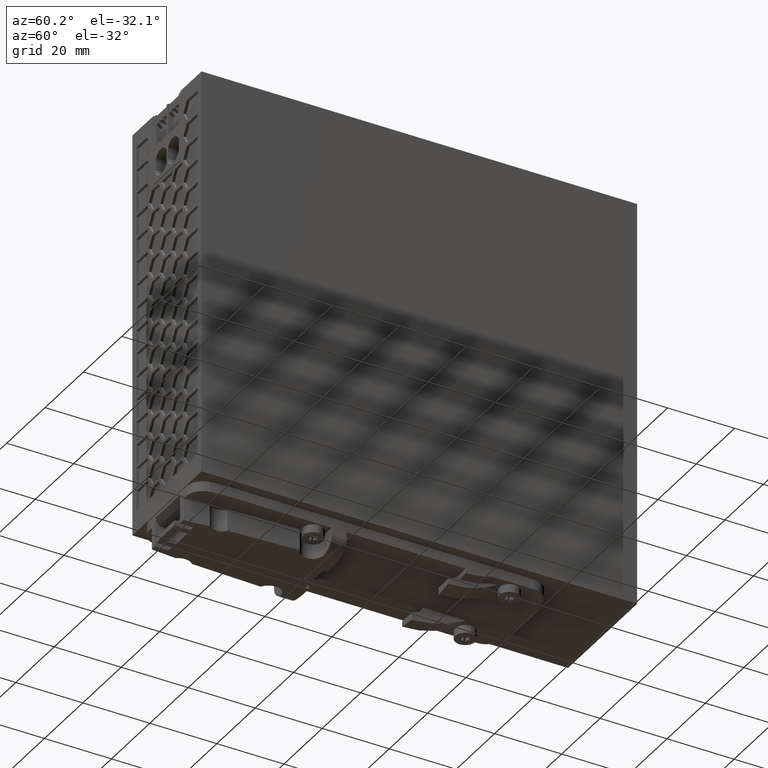
[diagram: clean part render]
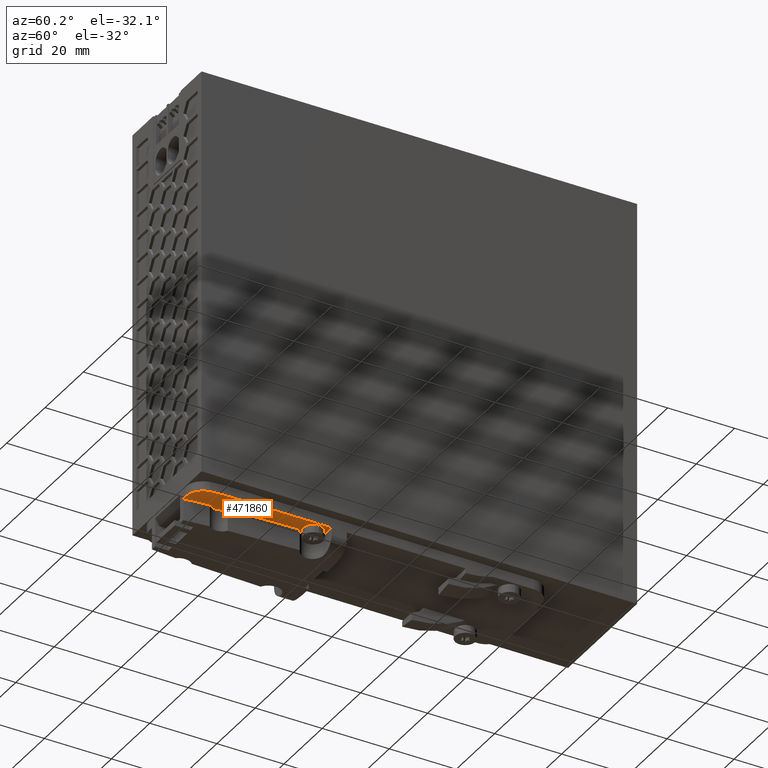
[diagram: same view with one face highlighted and labeled with its STEP entity id]
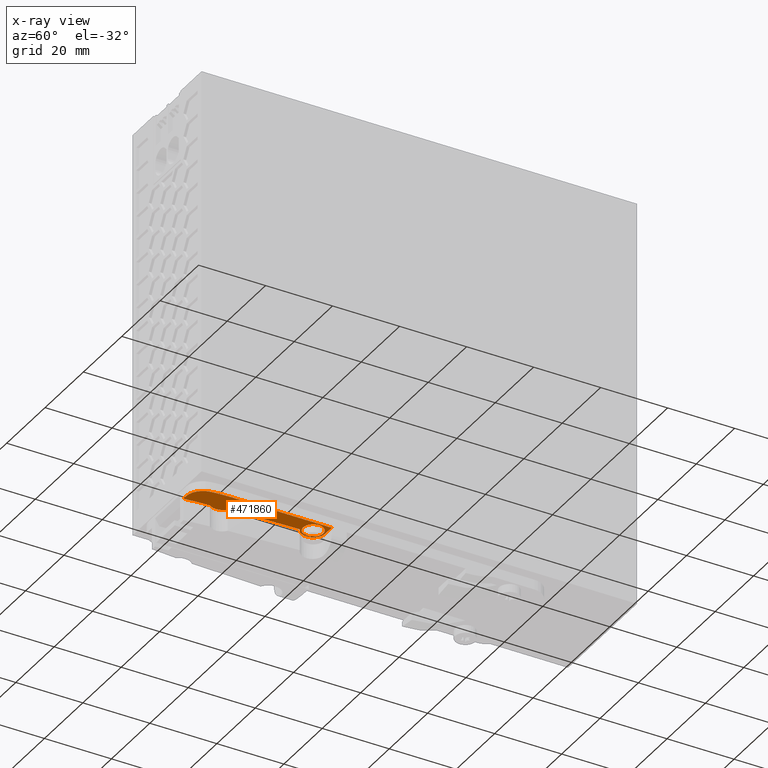
[diagram: x-ray of the same camera — body ghosted, the highlighted face saturated]
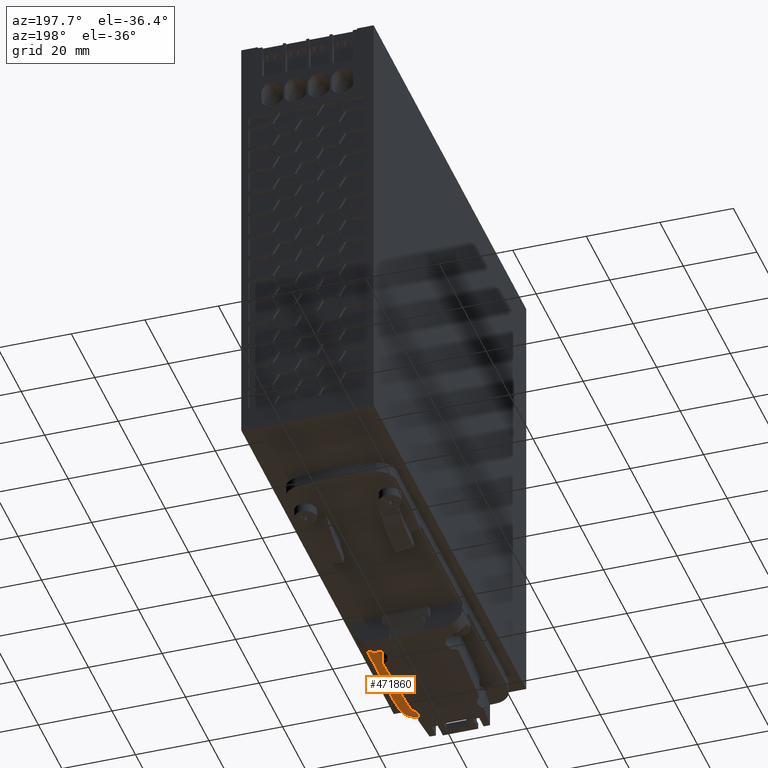
[diagram: same view with one face highlighted and labeled with its STEP entity id]
A machine part, auxiliary view. The second image highlights one B-rep face of the part: STEP entity #471860.
The next image is the same camera in x-ray: the body ghosted, the highlighted face saturated — about 0% of this face is hidden behind the body in this view.
A second angle (auxiliary view) of the same face is appended — the face is thin or edge-on in the first view.
In plain terms, the highlighted planar face has unit normal (0, 0, -1).
Its self-contained STEP definition (entity closure, byte-faithful):
#405320=CARTESIAN_POINT('',(27.6429025759224,0.198853703293764,
6.59999999999972));
#405330=VERTEX_POINT('',#405320);
#405360=CARTESIAN_POINT('',(0.00178708709996157,0.198473725847947,
6.59999999999972));
#405370=DIRECTION('',(0.999999999905513,1.37468202386569E-5,
5.47171506743298E-60));
#405380=VECTOR('',#405370,1.);
#405390=LINE('',#405360,#405380);
#405400=CARTESIAN_POINT('',(26.218370185678,0.198834120503079,
6.59999999999972));
#405410=VERTEX_POINT('',#405400);
#405420=EDGE_CURVE('',#405410,#405330,#405390,.T.);
#406590=CARTESIAN_POINT('',(33.001331739842,40.5489273684688,
6.59999999999972));
#406600=VERTEX_POINT('',#406590);
#406630=CARTESIAN_POINT('',(33.0001130694827,129.2,6.59999999999972));
#406640=DIRECTION('',(1.37468202358229E-5,-0.999999999905513,
3.26265223505973E-55));
#406650=VECTOR('',#406640,1.);
#406660=LINE('',#406630,#406650);
#406670=CARTESIAN_POINT('',(33.0017489558362,10.1989273713365,
6.59999999999972));
#406680=VERTEX_POINT('',#406670);
#406690=EDGE_CURVE('',#406600,#406680,#406660,.T.);
#470870=CARTESIAN_POINT('',(-6.99825104038126,10.1983774985268,
6.59999999999972));
#470880=DIRECTION('',(9.95682444457783E-60,-3.26265223399926E-55,-1.));
#470890=DIRECTION('',(-1.,1.38913403349705E-19,-9.95682444457783E-60));
#470900=AXIS2_PLACEMENT_3D('',#470870,#470880,#470890);
#470910=CIRCLE('',#470900,39.9999999999969);
#470920=CARTESIAN_POINT('',(32.5915602535649,4.4846360177205,
6.59999999999972));
#470930=VERTEX_POINT('',#470920);
#470940=EDGE_CURVE('',#406680,#470930,#470910,.T.);
#471120=CARTESIAN_POINT('',(33.860805814384,-3.83617520429354,
6.59999999999972));
#471130=DIRECTION('',(9.95682444457778E-60,-3.26265223399926E-55,-1.));
#471140=DIRECTION('',(-1.,1.38913403349705E-19,-9.95682444457783E-60));
#471150=AXIS2_PLACEMENT_3D('',#471120,#471130,#471140);
#471160=PLANE('',#471150);
#471170=CARTESIAN_POINT('',(29.5013798540436,37.0488792549287,
6.59999999999972));
#471180=DIRECTION('',(9.95682444457783E-60,-3.26265223399926E-55,-1.));
#471190=DIRECTION('',(-1.,1.38913403349705E-19,-9.95682444457783E-60));
#471200=AXIS2_PLACEMENT_3D('',#471170,#471180,#471190);
#471210=CIRCLE('',#471200,3.49999999999999);
#471220=CARTESIAN_POINT('',(28.2357244112665,33.7857341003012,
6.59999999999972));
#471230=VERTEX_POINT('',#471220);
#471240=CARTESIAN_POINT('',(29.501069086508,40.5488792509873,
6.59999999999972));
#471250=VERTEX_POINT('',#471240);
#471260=EDGE_CURVE('',#471230,#471250,#471210,.T.);
#471270=ORIENTED_EDGE('',*,*,#471260,.T.);
#471280=CARTESIAN_POINT('',(-373.198675095222,41.0433434100426,
6.59999999999972));
#471290=DIRECTION('',(9.95682444457783E-60,-3.26265223399926E-55,-1.));
#471300=DIRECTION('',(-1.,1.38913403349705E-19,-9.95682444457783E-60));
#471310=AXIS2_PLACEMENT_3D('',#471280,#471290,#471300);
#471320=CIRCLE('',#471310,401.500000000035);
#471330=CARTESIAN_POINT('',(27.304840790004,12.7735050022907,
6.59999999999972));
#471340=VERTEX_POINT('',#471330);
#471350=EDGE_CURVE('',#471230,#471340,#471320,.T.);
#471360=ORIENTED_EDGE('',*,*,#471350,.F.);
#471370=CARTESIAN_POINT('',(29.5017510181899,10.0488792574798,
6.59999999999972));
#471380=DIRECTION('',(9.95682444457783E-60,-3.26265223399926E-55,-1.));
#471390=DIRECTION('',(-1.,1.38913403349705E-19,-9.95682444457783E-60));
#471400=AXIS2_PLACEMENT_3D('',#471370,#471380,#471390);
#471410=CIRCLE('',#471400,3.49999999999993);
#471420=CARTESIAN_POINT('',(26.9137756270187,7.69252967079017,
6.59999999999972));
#471430=VERTEX_POINT('',#471420);
#471440=EDGE_CURVE('',#471430,#471340,#471410,.T.);
#471450=ORIENTED_EDGE('',*,*,#471440,.T.);
#471460=CARTESIAN_POINT('',(-373.198675095112,41.0433434100267,
6.59999999999972));
#471470=DIRECTION('',(9.95682444457783E-60,-3.26265223399926E-55,-1.));
#471480=DIRECTION('',(-1.,1.38913403349705E-19,-9.95682444457783E-60));
#471490=AXIS2_PLACEMENT_3D('',#471460,#471470,#471480);
#471500=CIRCLE('',#471490,401.499999999923);
#471510=EDGE_CURVE('',#471430,#405410,#471500,.T.);
#471520=ORIENTED_EDGE('',*,*,#471510,.F.);
#471530=ORIENTED_EDGE('',*,*,#405420,.F.);
#471540=CARTESIAN_POINT('',(27.6428338418213,5.19885370282137,
6.59999999999972));
#471550=DIRECTION('',(9.95682444457783E-60,-3.26265223399926E-55,-1.));
#471560=DIRECTION('',(-1.,1.38913403349705E-19,-9.95682444457783E-60));
#471570=AXIS2_PLACEMENT_3D('',#471540,#471550,#471560);
#471580=CIRCLE('',#471570,4.99999999999991);
#471590=EDGE_CURVE('',#470930,#405330,#471580,.T.);
#471600=ORIENTED_EDGE('',*,*,#471590,.T.);
#471610=ORIENTED_EDGE('',*,*,#470940,.T.);
#471620=ORIENTED_EDGE('',*,*,#406690,.T.);
#471630=CARTESIAN_POINT('',(0.00178708709996158,40.5484737296605,
6.59999999999972));
#471640=DIRECTION('',(-0.999999999905512,-1.37468202397841E-5,
-5.47171506706521E-60));
#471650=VECTOR('',#471640,1.);
#471660=LINE('',#471630,#471650);
#471670=EDGE_CURVE('',#406600,#471250,#471660,.T.);
#471680=ORIENTED_EDGE('',*,*,#471670,.F.);
#471690=EDGE_LOOP('',(#471680,#471620,#471610,#471600,#471530,#471520,
#471450,#471360,#471270));
#471700=FACE_OUTER_BOUND('',#471690,.T.);
#471710=CARTESIAN_POINT('',(29.5013798540435,37.0488792549287,
6.59999999999972));
#471720=DIRECTION('',(9.95682444457783E-60,-3.26265223399926E-55,-1.));
#471730=DIRECTION('',(-1.,1.38913403349705E-19,-9.95682444457783E-60));
#471740=AXIS2_PLACEMENT_3D('',#471710,#471720,#471730);
#471750=CIRCLE('',#471740,2.99999999999998);
#471760=CARTESIAN_POINT('',(32.5013798540435,37.0488792549287,
6.59999999999972));
#471770=VERTEX_POINT('',#471760);
#471780=CARTESIAN_POINT('',(26.5013798540436,37.0488792549287,
6.59999999999972));
#471790=VERTEX_POINT('',#471780);
#471800=EDGE_CURVE('',#471770,#471790,#471750,.T.);
#471810=ORIENTED_EDGE('',*,*,#471800,.F.);
#471820=EDGE_CURVE('',#471790,#471770,#471750,.T.);
#471830=ORIENTED_EDGE('',*,*,#471820,.F.);
#471840=EDGE_LOOP('',(#471830,#471810));
#471850=FACE_BOUND('',#471840,.T.);
#471860=ADVANCED_FACE('',(#471700,#471850),#471160,.T.);